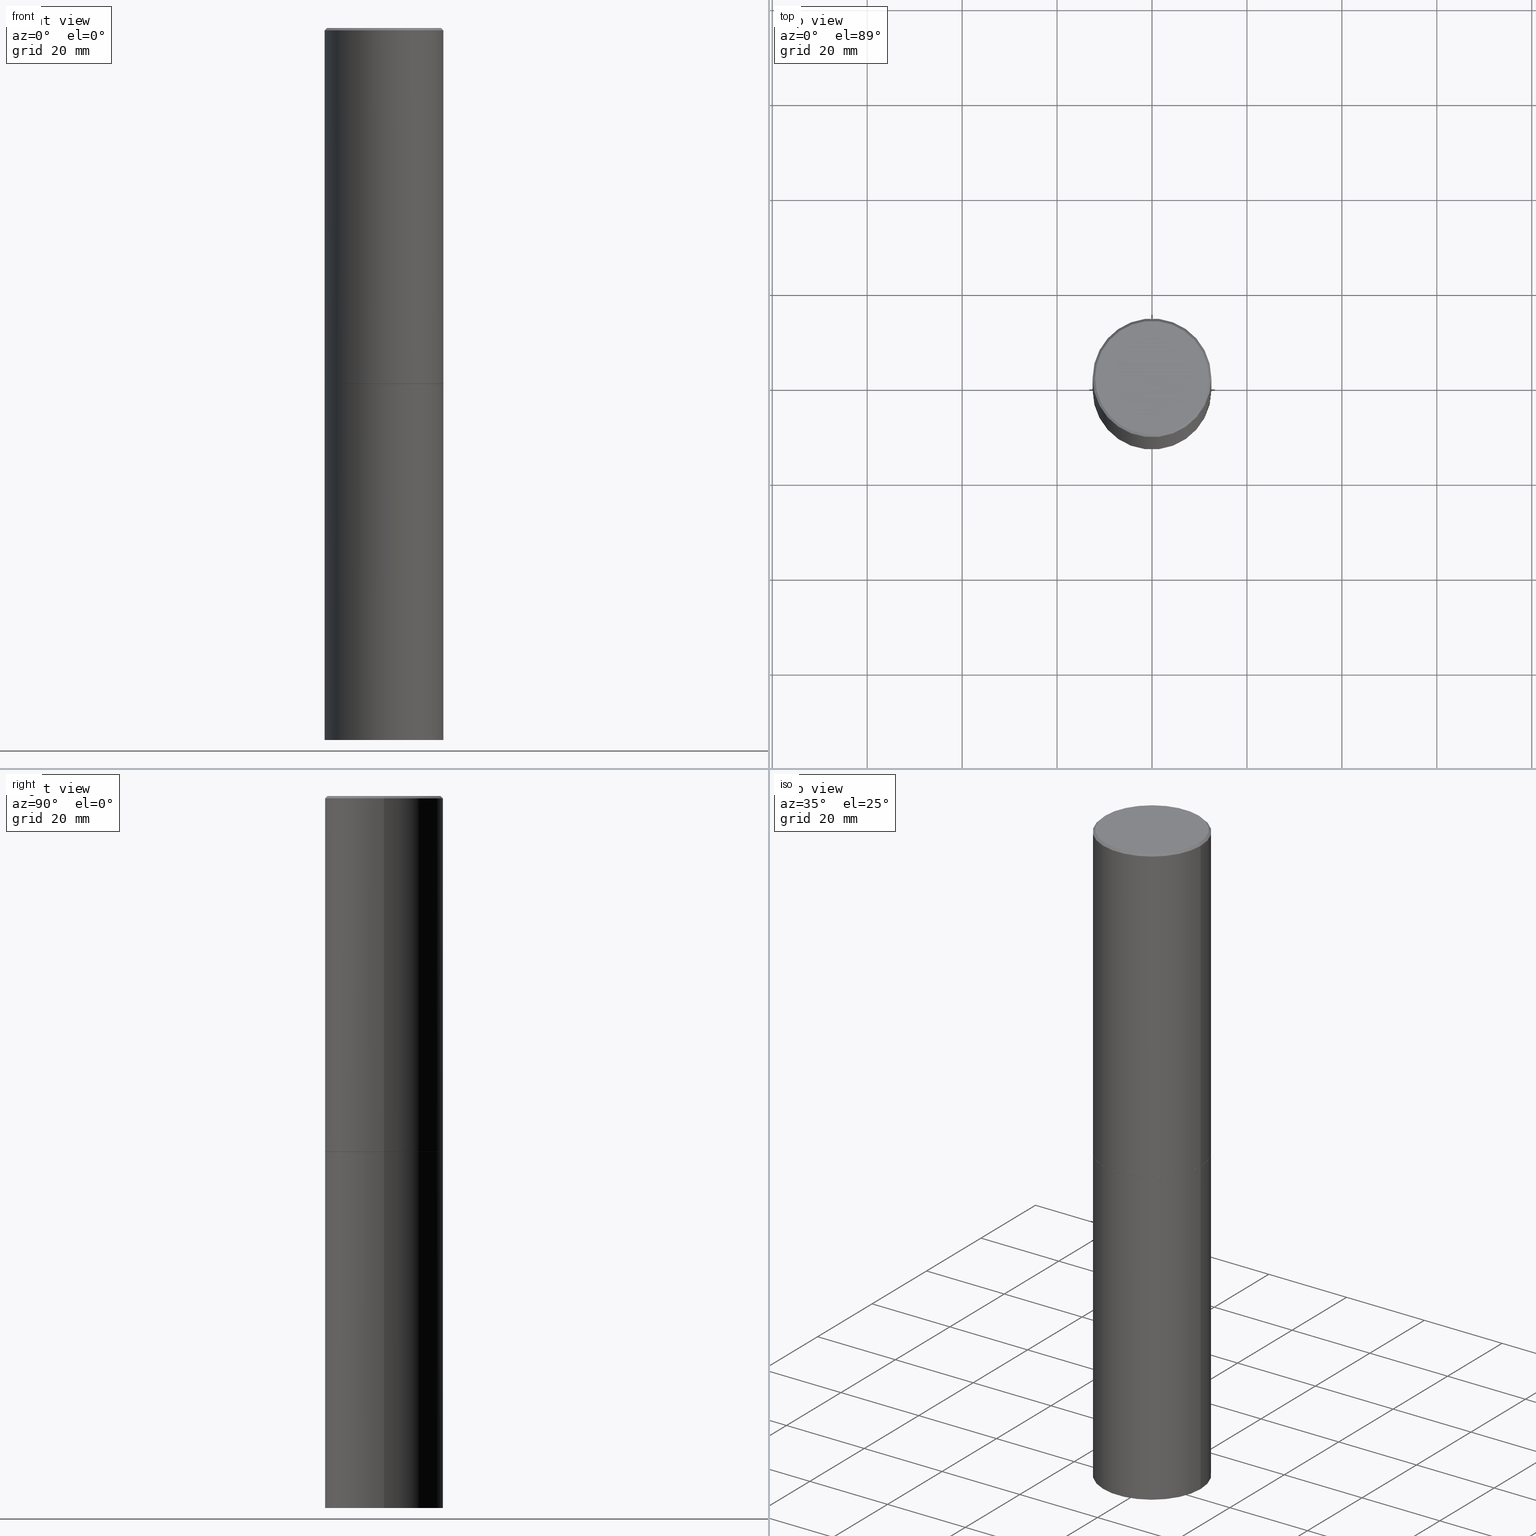
[diagram: canonical four-view strip — front | top / right | iso, engineering-drawing reading convention]
A machine part, canonical four-view strip (front | top / right | iso — engineering-drawing reading convention). The complete STEP part file that produces these views, byte-faithful:
ISO-10303-21;
HEADER;
FILE_DESCRIPTION (( 'STEP AP203' ),
    '1' );
FILE_NAME ('70563.STEP',
    '2024-02-29T04:14:40',
    ( '' ),
    ( '' ),
    'SwSTEP 2.0',
    'SolidWorks 2023',
    '' );
FILE_SCHEMA (( 'CONFIG_CONTROL_DESIGN' ));
ENDSEC;

DATA;
#1 = ADVANCED_FACE ( 'NONE', ( #340 ), #129, .T. ) ;
#2 = ORIENTED_EDGE ( 'NONE', *, *, #165, .F. ) ;
#3 = ORIENTED_EDGE ( 'NONE', *, *, #34, .F. ) ;
#4 = PERSON_AND_ORGANIZATION ( #355, #241 ) ;
#5 = DATE_AND_TIME ( #148, #132 ) ;
#6 = COORDINATED_UNIVERSAL_TIME_OFFSET ( 5, 0, .BEHIND. ) ;
#7 = VERTEX_POINT ( 'NONE', #158 ) ;
#8 = EDGE_CURVE ( 'NONE', #299, #152, #245, .T. ) ;
#9 = ORIENTED_EDGE ( 'NONE', *, *, #13, .F. ) ;
#10 = MECHANICAL_CONTEXT ( 'NONE', #189, 'mechanical' ) ;
#11 = CARTESIAN_POINT ( 'NONE',  ( -0.4911499999999999755, -6.819466302516424705E-15, -2.952700000000000546 ) ) ;
#12 = CC_DESIGN_SECURITY_CLASSIFICATION ( #176, ( #203 ) ) ;
#13 = EDGE_CURVE ( 'NONE', #331, #261, #123, .T. ) ;
#14 = ORIENTED_EDGE ( 'NONE', *, *, #227, .F. ) ;
#15 = EDGE_LOOP ( 'NONE', ( #122, #84, #82, #32 ) ) ;
#16 =( LENGTH_UNIT ( ) NAMED_UNIT ( * ) SI_UNIT ( $, .METRE. ) );
#17 = DIRECTION ( 'NONE',  ( 1.000000000000000000, -6.982962677686264344E-15, 0.000000000000000000 ) ) ;
#18 = VECTOR ( 'NONE', #181, 39.37007874015748143 ) ;
#19 = CONICAL_SURFACE ( 'NONE', #270, 0.4921499999999996988, 0.7853981633974469467 ) ;
#20 = FACE_OUTER_BOUND ( 'NONE', #339, .T. ) ;
#21 = CC_DESIGN_DATE_AND_TIME_ASSIGNMENT ( #329, #213, ( #176 ) ) ;
#22 = CYLINDRICAL_SURFACE ( 'NONE', #119, 0.4921499999999998098 ) ;
#23 = DIRECTION ( 'NONE',  ( 2.438088387897960049E-29, -3.491481338843145188E-15, -1.000000000000000000 ) ) ;
#24 = COORDINATED_UNIVERSAL_TIME_OFFSET ( 5, 0, .BEHIND. ) ;
#25 = EDGE_CURVE ( 'NONE', #61, #273, #279, .T. ) ;
#26 = CARTESIAN_POINT ( 'NONE',  ( 3.436665081823440533E-15, 0.4921499999999793262, -5.905500000000001748 ) ) ;
#27 = DIRECTION ( 'NONE',  ( 0.000000000000000000, 0.000000000000000000, 1.000000000000000000 ) ) ;
#28 = APPROVAL_ROLE ( '' ) ;
#29 = ORIENTED_EDGE ( 'NONE', *, *, #39, .T. ) ;
#30 = DIRECTION ( 'NONE',  ( -2.445468806185136877E-29, 3.491481338843145188E-15, 1.000000000000000000 ) ) ;
#31 = APPROVAL_PERSON_ORGANIZATION ( #4, #147, #223 ) ;
#32 = ORIENTED_EDGE ( 'NONE', *, *, #25, .F. ) ;
#33 = ORIENTED_EDGE ( 'NONE', *, *, #240, .T. ) ;
#34 = EDGE_CURVE ( 'NONE', #7, #273, #174, .T. ) ;
#35 = AXIS2_PLACEMENT_3D ( 'NONE', #225, #199, #95 ) ;
#36 = CARTESIAN_POINT ( 'NONE',  ( -0.4921499999999996988, 3.366835455046430506E-15, -0.02000000000000010797 ) ) ;
#37 = CALENDAR_DATE ( 2024, 28, 2 ) ;
#38 = DIRECTION ( 'NONE',  ( 1.000000000000000000, -6.982962677686265922E-15, 4.876006802227162976E-29 ) ) ;
#39 = EDGE_CURVE ( 'NONE', #61, #276, #105, .T. ) ;
#40 = VECTOR ( 'NONE', #205, 39.37007874015748143 ) ;
#41 = AXIS2_PLACEMENT_3D ( 'NONE', #74, #49, #210 ) ;
#42 = APPROVAL_STATUS ( 'not_yet_approved' ) ;
#43 = DIRECTION ( 'NONE',  ( 0.7071067811865465735, -7.319954787623252890E-15, -0.7071067811865484609 ) ) ;
#44 = ORIENTED_EDGE ( 'NONE', *, *, #39, .F. ) ;
#45 = EDGE_CURVE ( 'NONE', #59, #299, #256, .T. ) ;
#46 = CARTESIAN_POINT ( 'NONE',  ( 7.220735744022853640E-29, -1.030929694920215659E-14, -2.952700000000000546 ) ) ;
#47 = AXIS2_PLACEMENT_3D ( 'NONE', #66, #255, #345 ) ;
#48 = AXIS2_PLACEMENT_3D ( 'NONE', #54, #291, #17 ) ;
#49 = DIRECTION ( 'NONE',  ( -2.445468806185136597E-29, 3.491481338843145583E-15, 1.000000000000000000 ) ) ;
#50 = DIRECTION ( 'NONE',  ( -2.445468806185136597E-29, 3.491481338843145583E-15, 1.000000000000000000 ) ) ;
#51 = DIRECTION ( 'NONE',  ( -2.445468806185136597E-29, 3.491481338843145583E-15, 1.000000000000000000 ) ) ;
#52 = APPROVAL_PERSON_ORGANIZATION ( #116, #79, #242 ) ;
#53 = LINE ( 'NONE', #312, #92 ) ;
#54 = CARTESIAN_POINT ( 'NONE',  ( 7.220735744022853640E-29, -1.030929694920215659E-14, -2.952700000000000546 ) ) ;
#55 = AXIS2_PLACEMENT_3D ( 'NONE', #239, #357, #104 ) ;
#56 = ORIENTED_EDGE ( 'NONE', *, *, #200, .T. ) ;
#57 = CARTESIAN_POINT ( 'NONE',  ( -0.4921499999999996988, 3.366835455046430506E-15, -0.02000000000000010797 ) ) ;
#58 = EDGE_LOOP ( 'NONE', ( #302, #177, #85, #335 ) ) ;
#59 = VERTEX_POINT ( 'NONE', #125 ) ;
#60 = FACE_OUTER_BOUND ( 'NONE', #193, .T. ) ;
#61 = VERTEX_POINT ( 'NONE', #229 ) ;
#62 = CC_DESIGN_APPROVAL ( #147, ( #176 ) ) ;
#63 = DIRECTION ( 'NONE',  ( -1.000000000000000000, 6.982962677686265922E-15, -4.876176775795935793E-29 ) ) ;
#64 = PERSON_AND_ORGANIZATION_ROLE ( 'creator' ) ;
#65 = DIRECTION ( 'NONE',  ( -2.445468806185136597E-29, 3.491481338843145583E-15, 1.000000000000000000 ) ) ;
#66 = CARTESIAN_POINT ( 'NONE',  ( 0.000000000000000000, 0.000000000000000000, 0.000000000000000000 ) ) ;
#67 = DIRECTION ( 'NONE',  ( 1.000000000000000000, -6.982962677686265922E-15, 0.000000000000000000 ) ) ;
#68 = LOCAL_TIME ( 23, 14, 40.00000000000000000, #24 ) ;
#69 = PLANE ( 'NONE',  #247 ) ;
#70 = CALENDAR_DATE ( 2024, 28, 2 ) ;
#71 = ADVANCED_FACE ( 'NONE', ( #127 ), #348, .T. ) ;
#72 = FACE_OUTER_BOUND ( 'NONE', #58, .T. ) ;
#73 = DIRECTION ( 'NONE',  ( -1.000000000000000000, 6.982962677686265922E-15, 0.000000000000000000 ) ) ;
#74 = CARTESIAN_POINT ( 'NONE',  ( 7.220735744022853640E-29, -1.030929694920215659E-14, -2.952700000000000546 ) ) ;
#75 = CARTESIAN_POINT ( 'NONE',  ( 1.444171603492632270E-28, -2.061894304653819197E-14, -5.905499999999999972 ) ) ;
#76 = AXIS2_PLACEMENT_3D ( 'NONE', #107, #51, #143 ) ;
#77 = DIRECTION ( 'NONE',  ( 1.000000000000000000, -6.982962677686265922E-15, 0.000000000000000000 ) ) ;
#78 = CARTESIAN_POINT ( 'NONE',  ( 7.220735744022853640E-29, -1.030929694920215659E-14, -2.952700000000000546 ) ) ;
#79 = APPROVAL ( #267, 'UNSPECIFIED' ) ;
#80 = PLANE ( 'NONE',  #297 ) ;
#81 = PERSON_AND_ORGANIZATION_ROLE ( 'design_owner' ) ;
#82 = ORIENTED_EDGE ( 'NONE', *, *, #34, .T. ) ;
#83 = ADVANCED_FACE ( 'NONE', ( #349 ), #97, .T. ) ;
#84 = ORIENTED_EDGE ( 'NONE', *, *, #361, .T. ) ;
#85 = ORIENTED_EDGE ( 'NONE', *, *, #325, .F. ) ;
#86 = LOCAL_TIME ( 23, 14, 40.00000000000000000, #6 ) ;
#87 = DIRECTION ( 'NONE',  ( 1.000000000000000000, -6.982962677686264344E-15, 0.000000000000000000 ) ) ;
#88 = PERSON_AND_ORGANIZATION ( #355, #241 ) ;
#89 = ORIENTED_EDGE ( 'NONE', *, *, #325, .T. ) ;
#90 = EDGE_LOOP ( 'NONE', ( #56, #196, #9, #218 ) ) ;
#91 = PERSON_AND_ORGANIZATION ( #355, #241 ) ;
#92 = VECTOR ( 'NONE', #319, 39.37007874015748143 ) ;
#93 = DIRECTION ( 'NONE',  ( 1.000000000000000000, -6.982962677686265922E-15, 0.000000000000000000 ) ) ;
#94 = EDGE_CURVE ( 'NONE', #299, #273, #211, .T. ) ;
#95 = DIRECTION ( 'NONE',  ( 1.000000000000000000, -6.982962677686265922E-15, 0.000000000000000000 ) ) ;
#96 = ORIENTED_EDGE ( 'NONE', *, *, #103, .F. ) ;
#97 = CYLINDRICAL_SURFACE ( 'NONE', #323, 0.4921499999999998098 ) ;
#98 = CARTESIAN_POINT ( 'NONE',  ( -2.087702828670439639E-46, 2.980686340760894400E-32, 8.537024980200822558E-18 ) ) ;
#99 = AXIS2_PLACEMENT_3D ( 'NONE', #269, #187, #235 ) ;
#100 = UNCERTAINTY_MEASURE_WITH_UNIT (LENGTH_MEASURE( 1.000000000000000082E-05 ), #274, 'distance_accuracy_value', 'NONE');
#101 = DIRECTION ( 'NONE',  ( 1.000000000000000000, -6.982962677686264344E-15, 0.000000000000000000 ) ) ;
#102 = FACE_OUTER_BOUND ( 'NONE', #150, .T. ) ;
#103 = EDGE_CURVE ( 'NONE', #336, #59, #358, .T. ) ;
#104 = DIRECTION ( 'NONE',  ( 1.000000000000000000, -6.982962677686265922E-15, 4.876006802227162976E-29 ) ) ;
#105 = CIRCLE ( 'NONE', #364, 0.4721499999999996255 ) ;
#106 =( GEOMETRIC_REPRESENTATION_CONTEXT ( 3 ) GLOBAL_UNCERTAINTY_ASSIGNED_CONTEXT ( ( #100 ) ) GLOBAL_UNIT_ASSIGNED_CONTEXT ( ( #274, #109, #142 ) ) REPRESENTATION_CONTEXT ( 'NONE', 'WORKASPACE' ) );
#107 = CARTESIAN_POINT ( 'NONE',  ( 4.890937612370299433E-31, -6.982962677686328587E-17, -0.02000000000000010797 ) ) ;
#108 = DIRECTION ( 'NONE',  ( -1.000000000000000000, 6.982962677686265922E-15, -4.876176775795935793E-29 ) ) ;
#109 =( NAMED_UNIT ( * ) PLANE_ANGLE_UNIT ( ) SI_UNIT ( $, .RADIAN. ) );
#110 = PERSON_AND_ORGANIZATION_ROLE ( 'classification_officer' ) ;
#111 = AXIS2_PLACEMENT_3D ( 'NONE', #231, #224, #233 ) ;
#112 = CLOSED_SHELL ( 'NONE', ( #334, #83, #156, #248, #175, #292, #209, #257 ) ) ;
#113 = CALENDAR_DATE ( 2024, 28, 2 ) ;
#114 = PRODUCT_DEFINITION_SHAPE ( 'NONE', 'NONE',  #206 ) ;
#115 = ORIENTED_EDGE ( 'NONE', *, *, #13, .T. ) ;
#116 = PERSON_AND_ORGANIZATION ( #355, #241 ) ;
#117 = ORIENTED_EDGE ( 'NONE', *, *, #151, .F. ) ;
#118 = ORIENTED_EDGE ( 'NONE', *, *, #282, .T. ) ;
#119 = AXIS2_PLACEMENT_3D ( 'NONE', #294, #166, #288 ) ;
#120 = EDGE_LOOP ( 'NONE', ( #144, #259, #333, #173 ) ) ;
#121 = VERTEX_POINT ( 'NONE', #265 ) ;
#122 = ORIENTED_EDGE ( 'NONE', *, *, #240, .F. ) ;
#123 = CIRCLE ( 'NONE', #111, 0.4921499999999999764 ) ;
#124 = VECTOR ( 'NONE', #43, 39.37007874015748143 ) ;
#125 = CARTESIAN_POINT ( 'NONE',  ( -0.4911499999999999755, -6.814167848168202303E-15, -2.952700000000000546 ) ) ;
#126 = APPROVAL_DATE_TIME ( #198, #220 ) ;
#127 = FACE_OUTER_BOUND ( 'NONE', #90, .T. ) ;
#128 = CC_DESIGN_PERSON_AND_ORGANIZATION_ASSIGNMENT ( #280, #347, ( #203 ) ) ;
#129 = CYLINDRICAL_SURFACE ( 'NONE', #47, 0.4921499999999999764 ) ;
#130 = DIRECTION ( 'NONE',  ( -2.438088387897960049E-29, 3.491481338843145188E-15, 1.000000000000000000 ) ) ;
#131 = VECTOR ( 'NONE', #197, 39.37007874015748143 ) ;
#132 = LOCAL_TIME ( 23, 14, 40.00000000000000000, #219 ) ;
#133 = DIRECTION ( 'NONE',  ( 1.000000000000000000, -6.982962677686265922E-15, 0.000000000000000000 ) ) ;
#134 = LINE ( 'NONE', #253, #365 ) ;
#135 = CARTESIAN_POINT ( 'NONE',  ( 0.4921499999999998098, -3.436665081823294593E-15, 2.399810400207968762E-29 ) ) ;
#136 = AXIS2_PLACEMENT_3D ( 'NONE', #202, #311, #93 ) ;
#137 = AXIS2_PLACEMENT_3D ( 'NONE', #75, #184, #133 ) ;
#138 = DIRECTION ( 'NONE',  ( 2.438088387897960049E-29, -3.491481338843145188E-15, -1.000000000000000000 ) ) ;
#139 = CARTESIAN_POINT ( 'NONE',  ( -0.4921499999999999764, -1.196718392382684217E-14, -5.905499999999999972 ) ) ;
#140 = DIRECTION ( 'NONE',  ( 1.000000000000000000, 0.000000000000000000, 0.000000000000000000 ) ) ;
#141 = PERSON_AND_ORGANIZATION ( #355, #241 ) ;
#142 =( NAMED_UNIT ( * ) SI_UNIT ( $, .STERADIAN. ) SOLID_ANGLE_UNIT ( ) );
#143 = DIRECTION ( 'NONE',  ( 1.000000000000000000, -6.982962677686265922E-15, 0.000000000000000000 ) ) ;
#144 = ORIENTED_EDGE ( 'NONE', *, *, #356, .F. ) ;
#145 = CC_DESIGN_APPROVAL ( #220, ( #206 ) ) ;
#146 = ORIENTED_EDGE ( 'NONE', *, *, #94, .T. ) ;
#147 = APPROVAL ( #42, 'UNSPECIFIED' ) ;
#148 = CALENDAR_DATE ( 2024, 28, 2 ) ;
#149 = AXIS2_PLACEMENT_3D ( 'NONE', #182, #341, #63 ) ;
#150 = EDGE_LOOP ( 'NONE', ( #171, #157, #192, #277 ) ) ;
#151 = EDGE_CURVE ( 'NONE', #152, #7, #296, .T. ) ;
#152 = VERTEX_POINT ( 'NONE', #167 ) ;
#153 = VECTOR ( 'NONE', #352, 39.37007874015748143 ) ;
#154 = CIRCLE ( 'NONE', #258, 0.4921499999999999764 ) ;
#155 = EDGE_LOOP ( 'NONE', ( #246, #222, #308, #260 ) ) ;
#156 = ADVANCED_FACE ( 'NONE', ( #268 ), #19, .T. ) ;
#157 = ORIENTED_EDGE ( 'NONE', *, *, #8, .T. ) ;
#158 = CARTESIAN_POINT ( 'NONE',  ( 0.4921499999999996988, -3.446223716380120377E-15, -0.02000000000000010797 ) ) ;
#159 = COORDINATED_UNIVERSAL_TIME_OFFSET ( 5, 0, .BEHIND. ) ;
#160 = CARTESIAN_POINT ( 'NONE',  ( 0.4921499999999999764, -3.436665081823295777E-15, 2.399810400207969603E-29 ) ) ;
#161 = AXIS2_PLACEMENT_3D ( 'NONE', #350, #65, #67 ) ;
#162 = DIRECTION ( 'NONE',  ( 1.000000000000000000, -6.982962677686265922E-15, 4.876176775795935793E-29 ) ) ;
#163 = CIRCLE ( 'NONE', #99, 0.4921499999999999764 ) ;
#164 = PRODUCT ( '70563', '70563', '', ( #10 ) ) ;
#165 = EDGE_CURVE ( 'NONE', #59, #336, #285, .T. ) ;
#166 = DIRECTION ( 'NONE',  ( -2.445468806185136597E-29, 3.491481338843145583E-15, 1.000000000000000000 ) ) ;
#167 = CARTESIAN_POINT ( 'NONE',  ( 0.4921499999999999764, -1.374247054968660936E-14, -2.951700000000000212 ) ) ;
#168 = DATE_TIME_ROLE ( 'creation_date' ) ;
#169 = PRODUCT_RELATED_PRODUCT_CATEGORY ( 'detail', '', ( #164 ) ) ;
#170 = AXIS2_PLACEMENT_3D ( 'NONE', #201, #283, #204 ) ;
#171 = ORIENTED_EDGE ( 'NONE', *, *, #94, .F. ) ;
#172 = ORIENTED_EDGE ( 'NONE', *, *, #25, .T. ) ;
#173 = ORIENTED_EDGE ( 'NONE', *, *, #275, .F. ) ;
#174 = CIRCLE ( 'NONE', #161, 0.4921499999999996988 ) ;
#175 = ADVANCED_FACE ( 'NONE', ( #102 ), #22, .T. ) ;
#176 = SECURITY_CLASSIFICATION ( '', '', #286 ) ;
#177 = ORIENTED_EDGE ( 'NONE', *, *, #45, .T. ) ;
#178 = CARTESIAN_POINT ( 'NONE',  ( -0.4921499999999999764, -1.690881473276754954E-15, -2.951700000000000212 ) ) ;
#179 = CARTESIAN_POINT ( 'NONE',  ( 4.890937612370299433E-31, -6.982962677686328587E-17, -0.02000000000000010797 ) ) ;
#180 = ORIENTED_EDGE ( 'NONE', *, *, #200, .F. ) ;
#181 = DIRECTION ( 'NONE',  ( -0.7071067811864267805, 7.493145998869918709E-15, 0.7071067811866682540 ) ) ;
#182 = CARTESIAN_POINT ( 'NONE',  ( 3.297005828269567997E-15, 0.4721499999999996255, -1.644234401644689488E-15 ) ) ;
#183 = DIRECTION ( 'NONE',  ( -2.445468806185136597E-29, 3.491481338843145583E-15, 1.000000000000000000 ) ) ;
#184 = DIRECTION ( 'NONE',  ( -2.445468806185136597E-29, 3.491481338843145583E-15, 1.000000000000000000 ) ) ;
#185 = LOCAL_TIME ( 23, 14, 40.00000000000000000, #212 ) ;
#186 = CARTESIAN_POINT ( 'NONE',  ( 0.4721499999999996255, -3.342703923013973396E-15, 8.537024980224040028E-18 ) ) ;
#187 = DIRECTION ( 'NONE',  ( -2.445468806185136597E-29, 3.491481338843145583E-15, 1.000000000000000000 ) ) ;
#188 = SHAPE_DEFINITION_REPRESENTATION ( #114, #338 ) ;
#189 = APPLICATION_CONTEXT ( 'configuration controlled 3d designs of mechanical parts and assemblies' ) ;
#190 = CC_DESIGN_PERSON_AND_ORGANIZATION_ASSIGNMENT ( #307, #64, ( #203 ) ) ;
#191 = CONICAL_SURFACE ( 'NONE', #337, 0.4921499999999996988, 0.7853981633974469467 ) ;
#192 = ORIENTED_EDGE ( 'NONE', *, *, #151, .T. ) ;
#193 = EDGE_LOOP ( 'NONE', ( #29, #33 ) ) ;
#194 = AXIS2_PLACEMENT_3D ( 'NONE', #78, #264, #101 ) ;
#195 = APPLICATION_CONTEXT ( 'configuration controlled 3d designs of mechanical parts and assemblies' ) ;
#196 = ORIENTED_EDGE ( 'NONE', *, *, #356, .T. ) ;
#197 = DIRECTION ( 'NONE',  ( -0.7071067811865465735, 2.468850131082246805E-15, -0.7071067811865484609 ) ) ;
#198 = DATE_AND_TIME ( #37, #86 ) ;
#199 = DIRECTION ( 'NONE',  ( -2.445468806185136597E-29, 3.491481338843145583E-15, 1.000000000000000000 ) ) ;
#200 = EDGE_CURVE ( 'NONE', #121, #216, #163, .T. ) ;
#201 = CARTESIAN_POINT ( 'NONE',  ( 0.000000000000000000, 0.000000000000000000, 0.000000000000000000 ) ) ;
#202 = CARTESIAN_POINT ( 'NONE',  ( 7.218290275216666916E-29, -1.030580546786331359E-14, -2.951700000000000212 ) ) ;
#203 = PRODUCT_DEFINITION_FORMATION_WITH_SPECIFIED_SOURCE ( 'ANY', '', #164, .NOT_KNOWN. ) ;
#204 = DIRECTION ( 'NONE',  ( 1.000000000000000000, -6.982962677686265922E-15, 4.876176775795935793E-29 ) ) ;
#205 = DIRECTION ( 'NONE',  ( -2.445468806185136877E-29, 3.491481338843145188E-15, 1.000000000000000000 ) ) ;
#206 = PRODUCT_DEFINITION ( 'UNKNOWN', '', #203, #317 ) ;
#207 = FACE_OUTER_BOUND ( 'NONE', #313, .T. ) ;
#208 = DATE_AND_TIME ( #70, #330 ) ;
#209 = ADVANCED_FACE ( 'NONE', ( #327 ), #80, .F. ) ;
#210 = DIRECTION ( 'NONE',  ( 1.000000000000000000, -6.982962677686264344E-15, 0.000000000000000000 ) ) ;
#211 = LINE ( 'NONE', #360, #153 ) ;
#212 = COORDINATED_UNIVERSAL_TIME_OFFSET ( 5, 0, .BEHIND. ) ;
#213 = DATE_TIME_ROLE ( 'classification_date' ) ;
#214 = ORIENTED_EDGE ( 'NONE', *, *, #275, .T. ) ;
#215 = ADVANCED_FACE ( 'NONE', ( #20 ), #293, .T. ) ;
#216 = VERTEX_POINT ( 'NONE', #139 ) ;
#217 = MANIFOLD_SOLID_BREP ( 'Body-Move/Copy2[1]', #226 ) ;
#218 = ORIENTED_EDGE ( 'NONE', *, *, #250, .F. ) ;
#219 = COORDINATED_UNIVERSAL_TIME_OFFSET ( 5, 0, .BEHIND. ) ;
#220 = APPROVAL ( #271, 'UNSPECIFIED' ) ;
#221 = APPROVAL_DATE_TIME ( #5, #79 ) ;
#222 = ORIENTED_EDGE ( 'NONE', *, *, #165, .T. ) ;
#223 = APPROVAL_ROLE ( '' ) ;
#224 = DIRECTION ( 'NONE',  ( -2.445468806185136597E-29, 3.491481338843145583E-15, 1.000000000000000000 ) ) ;
#225 = CARTESIAN_POINT ( 'NONE',  ( 7.218290275216666916E-29, -1.030580546786331359E-14, -2.951700000000000212 ) ) ;
#226 = CLOSED_SHELL ( 'NONE', ( #71, #215, #328, #1 ) ) ;
#227 = EDGE_CURVE ( 'NONE', #216, #121, #252, .T. ) ;
#228 = DIMENSIONAL_EXPONENTS ( 1.000000000000000000, 0.000000000000000000, 0.000000000000000000, 0.000000000000000000, 0.000000000000000000, 0.000000000000000000, 0.000000000000000000 ) ;
#229 = CARTESIAN_POINT ( 'NONE',  ( -0.4721499999999996255, 3.331920641657999252E-15, 8.537024980177643606E-18 ) ) ;
#230 = FACE_OUTER_BOUND ( 'NONE', #251, .T. ) ;
#231 = CARTESIAN_POINT ( 'NONE',  ( 7.220735744022852519E-29, -1.030929694920215502E-14, -2.952700000000000102 ) ) ;
#232 = DIRECTION ( 'NONE',  ( 2.445468806185136597E-29, -3.491481338843145583E-15, -1.000000000000000000 ) ) ;
#233 = DIRECTION ( 'NONE',  ( 1.000000000000000000, -6.982962677686265922E-15, 0.000000000000000000 ) ) ;
#234 = CIRCLE ( 'NONE', #76, 0.4921499999999996988 ) ;
#235 = DIRECTION ( 'NONE',  ( 1.000000000000000000, -6.982962677686265922E-15, 0.000000000000000000 ) ) ;
#236 = CC_DESIGN_PERSON_AND_ORGANIZATION_ASSIGNMENT ( #91, #310, ( #206 ) ) ;
#237 = FACE_OUTER_BOUND ( 'NONE', #155, .T. ) ;
#238 = CARTESIAN_POINT ( 'NONE',  ( 0.4911499999999999755, -1.373897906834776478E-14, -2.952700000000000546 ) ) ;
#239 = CARTESIAN_POINT ( 'NONE',  ( -2.087702828670439639E-46, 2.980686340760894400E-32, 8.537024980200822558E-18 ) ) ;
#240 = EDGE_CURVE ( 'NONE', #276, #61, #315, .T. ) ;
#241 = ORGANIZATION ( 'UNSPECIFIED', 'UNSPECIFIED', '' ) ;
#242 = APPROVAL_ROLE ( '' ) ;
#243 = DIRECTION ( 'NONE',  ( 2.445468806185136597E-29, -3.491481338843145583E-15, -1.000000000000000000 ) ) ;
#244 = APPLICATION_PROTOCOL_DEFINITION ( 'international standard', 'config_control_design', 1994, #195 ) ;
#245 = CIRCLE ( 'NONE', #136, 0.4921499999999999764 ) ;
#246 = ORIENTED_EDGE ( 'NONE', *, *, #45, .F. ) ;
#247 = AXIS2_PLACEMENT_3D ( 'NONE', #344, #138, #108 ) ;
#248 = ADVANCED_FACE ( 'NONE', ( #207 ), #191, .T. ) ;
#249 = CALENDAR_DATE ( 2024, 28, 2 ) ;
#250 = EDGE_CURVE ( 'NONE', #121, #331, #322, .T. ) ;
#251 = EDGE_LOOP ( 'NONE', ( #115, #214 ) ) ;
#252 = CIRCLE ( 'NONE', #137, 0.4921499999999999764 ) ;
#253 = CARTESIAN_POINT ( 'NONE',  ( 0.4911499999999999755, -1.373897906834776478E-14, -2.952700000000000546 ) ) ;
#254 = EDGE_LOOP ( 'NONE', ( #96, #2 ) ) ;
#255 = DIRECTION ( 'NONE',  ( -2.445468806185136597E-29, 3.491481338843145583E-15, 1.000000000000000000 ) ) ;
#256 = LINE ( 'NONE', #11, #18 ) ;
#257 = ADVANCED_FACE ( 'NONE', ( #60 ), #278, .F. ) ;
#258 = AXIS2_PLACEMENT_3D ( 'NONE', #326, #301, #77 ) ;
#259 = ORIENTED_EDGE ( 'NONE', *, *, #227, .T. ) ;
#260 = ORIENTED_EDGE ( 'NONE', *, *, #8, .F. ) ;
#261 = VERTEX_POINT ( 'NONE', #306 ) ;
#262 = APPROVAL_DATE_TIME ( #208, #147 ) ;
#263 = AXIS2_PLACEMENT_3D ( 'NONE', #354, #50, #87 ) ;
#264 = DIRECTION ( 'NONE',  ( -2.445468806185136597E-29, 3.491481338843145583E-15, 1.000000000000000000 ) ) ;
#265 = CARTESIAN_POINT ( 'NONE',  ( 0.4921499999999999764, -2.405560812836148932E-14, -5.905499999999999972 ) ) ;
#266 = EDGE_CURVE ( 'NONE', #336, #152, #134, .T. ) ;
#267 = APPROVAL_STATUS ( 'not_yet_approved' ) ;
#268 = FACE_OUTER_BOUND ( 'NONE', #15, .T. ) ;
#269 = CARTESIAN_POINT ( 'NONE',  ( 1.444171603492632270E-28, -2.061894304653819197E-14, -5.905499999999999972 ) ) ;
#270 = AXIS2_PLACEMENT_3D ( 'NONE', #353, #243, #73 ) ;
#271 = APPROVAL_STATUS ( 'not_yet_approved' ) ;
#272 = CONICAL_SURFACE ( 'NONE', #263, 0.4911499999999999755, 0.7853981633972775267 ) ;
#273 = VERTEX_POINT ( 'NONE', #57 ) ;
#274 =( CONVERSION_BASED_UNIT ( 'INCH', #362 ) LENGTH_UNIT ( ) NAMED_UNIT ( #228 ) );
#275 = EDGE_CURVE ( 'NONE', #261, #331, #154, .T. ) ;
#276 = VERTEX_POINT ( 'NONE', #186 ) ;
#277 = ORIENTED_EDGE ( 'NONE', *, *, #282, .F. ) ;
#278 = PLANE ( 'NONE',  #149 ) ;
#279 = LINE ( 'NONE', #36, #131 ) ;
#280 = PERSON_AND_ORGANIZATION ( #355, #241 ) ;
#281 = DIRECTION ( 'NONE',  ( -2.445468806185136597E-29, 3.491481338843145583E-15, 1.000000000000000000 ) ) ;
#282 = EDGE_CURVE ( 'NONE', #273, #7, #234, .T. ) ;
#283 = DIRECTION ( 'NONE',  ( -2.445468806185136597E-29, 3.491481338843145583E-15, 1.000000000000000000 ) ) ;
#284 = CARTESIAN_POINT ( 'NONE',  ( 0.4921499999999996988, -3.446223716380120377E-15, -0.02000000000000010797 ) ) ;
#285 = CIRCLE ( 'NONE', #48, 0.4911499999999999755 ) ;
#286 = SECURITY_CLASSIFICATION_LEVEL ( 'unclassified' ) ;
#287 = ORIENTED_EDGE ( 'NONE', *, *, #361, .F. ) ;
#288 = DIRECTION ( 'NONE',  ( 1.000000000000000000, -6.982962677686265922E-15, 4.876176775795935793E-29 ) ) ;
#289 = LINE ( 'NONE', #284, #124 ) ;
#290 = AXIS2_PLACEMENT_3D ( 'NONE', #304, #27, #140 ) ;
#291 = DIRECTION ( 'NONE',  ( -2.445468806185136597E-29, 3.491481338843145583E-15, 1.000000000000000000 ) ) ;
#292 = ADVANCED_FACE ( 'NONE', ( #237 ), #272, .T. ) ;
#293 = PLANE ( 'NONE',  #359 ) ;
#294 = CARTESIAN_POINT ( 'NONE',  ( 0.000000000000000000, 0.000000000000000000, 0.000000000000000000 ) ) ;
#295 = APPLICATION_PROTOCOL_DEFINITION ( 'international standard', 'config_control_design', 1994, #189 ) ;
#296 = LINE ( 'NONE', #135, #40 ) ;
#297 = AXIS2_PLACEMENT_3D ( 'NONE', #46, #130, #162 ) ;
#298 = CC_DESIGN_PERSON_AND_ORGANIZATION_ASSIGNMENT ( #141, #81, ( #164 ) ) ;
#299 = VERTEX_POINT ( 'NONE', #178 ) ;
#300 = DIRECTION ( 'NONE',  ( -1.000000000000000000, 6.982962677686265922E-15, 0.000000000000000000 ) ) ;
#301 = DIRECTION ( 'NONE',  ( -2.445468806185136597E-29, 3.491481338843145583E-15, 1.000000000000000000 ) ) ;
#302 = ORIENTED_EDGE ( 'NONE', *, *, #103, .T. ) ;
#303 = CONICAL_SURFACE ( 'NONE', #41, 0.4911499999999999755, 0.7853981633972775267 ) ;
#304 = CARTESIAN_POINT ( 'NONE',  ( 0.000000000000000000, 0.000000000000000000, 0.000000000000000000 ) ) ;
#305 = DIRECTION ( 'NONE',  ( 0.7071067811864267805, -2.468850131080992517E-15, 0.7071067811866682540 ) ) ;
#306 = CARTESIAN_POINT ( 'NONE',  ( -0.4921499999999999764, -1.196718392382684217E-14, -2.952700000000000102 ) ) ;
#307 = PERSON_AND_ORGANIZATION ( #355, #241 ) ;
#308 = ORIENTED_EDGE ( 'NONE', *, *, #266, .T. ) ;
#309 = EDGE_LOOP ( 'NONE', ( #89, #146, #3, #117 ) ) ;
#310 = PERSON_AND_ORGANIZATION_ROLE ( 'creator' ) ;
#311 = DIRECTION ( 'NONE',  ( -2.445468806185136597E-29, 3.491481338843145583E-15, 1.000000000000000000 ) ) ;
#312 = CARTESIAN_POINT ( 'NONE',  ( -0.4921499999999999764, 3.496936074043332897E-15, -2.420853904668951509E-29 ) ) ;
#313 = EDGE_LOOP ( 'NONE', ( #287, #44, #172, #118 ) ) ;
#314 = CC_DESIGN_DATE_AND_TIME_ASSIGNMENT ( #332, #168, ( #206 ) ) ;
#315 = CIRCLE ( 'NONE', #55, 0.4721499999999996255 ) ;
#316 = CARTESIAN_POINT ( 'NONE',  ( 0.000000000000000000, 0.000000000000000000, 0.000000000000000000 ) ) ;
#317 = DESIGN_CONTEXT ( 'detailed design', #195, 'design' ) ;
#318 = DIRECTION ( 'NONE',  ( 1.000000000000000000, -6.982962677686265922E-15, 4.876176775795935793E-29 ) ) ;
#319 = DIRECTION ( 'NONE',  ( -2.445468806185136877E-29, 3.491481338843145188E-15, 1.000000000000000000 ) ) ;
#320 = CARTESIAN_POINT ( 'NONE',  ( 0.4921499999999999764, -1.374596203102545079E-14, -2.952700000000000102 ) ) ;
#321 = DIRECTION ( 'NONE',  ( -1.000000000000000000, 6.982962677686265922E-15, -4.876176775795935793E-29 ) ) ;
#322 = LINE ( 'NONE', #160, #324 ) ;
#323 = AXIS2_PLACEMENT_3D ( 'NONE', #316, #183, #318 ) ;
#324 = VECTOR ( 'NONE', #30, 39.37007874015748143 ) ;
#325 = EDGE_CURVE ( 'NONE', #152, #299, #351, .T. ) ;
#326 = CARTESIAN_POINT ( 'NONE',  ( 7.220735744022852519E-29, -1.030929694920215502E-14, -2.952700000000000102 ) ) ;
#327 = FACE_OUTER_BOUND ( 'NONE', #254, .T. ) ;
#328 = ADVANCED_FACE ( 'NONE', ( #230 ), #69, .F. ) ;
#329 = DATE_AND_TIME ( #113, #185 ) ;
#330 = LOCAL_TIME ( 23, 14, 40.00000000000000000, #159 ) ;
#331 = VERTEX_POINT ( 'NONE', #320 ) ;
#332 = DATE_AND_TIME ( #249, #68 ) ;
#333 = ORIENTED_EDGE ( 'NONE', *, *, #250, .T. ) ;
#334 = ADVANCED_FACE ( 'NONE', ( #72 ), #303, .T. ) ;
#335 = ORIENTED_EDGE ( 'NONE', *, *, #266, .F. ) ;
#336 = VERTEX_POINT ( 'NONE', #238 ) ;
#337 = AXIS2_PLACEMENT_3D ( 'NONE', #179, #232, #300 ) ;
#338 = ADVANCED_BREP_SHAPE_REPRESENTATION ( '70563', ( #217, #343, #290 ), #106 ) ;
#339 = EDGE_LOOP ( 'NONE', ( #180, #14 ) ) ;
#340 = FACE_OUTER_BOUND ( 'NONE', #120, .T. ) ;
#341 = DIRECTION ( 'NONE',  ( 2.438088387897960049E-29, -3.491481338843145188E-15, -1.000000000000000000 ) ) ;
#342 = CC_DESIGN_PERSON_AND_ORGANIZATION_ASSIGNMENT ( #88, #110, ( #176 ) ) ;
#343 = MANIFOLD_SOLID_BREP ( 'Body-Move/Copy2[2]', #112 ) ;
#344 = CARTESIAN_POINT ( 'NONE',  ( 3.436665081823367957E-15, 0.4921499999999896513, -2.952700000000001435 ) ) ;
#345 = DIRECTION ( 'NONE',  ( 1.000000000000000000, -6.982962677686265922E-15, 4.876176775795935793E-29 ) ) ;
#346 = CC_DESIGN_APPROVAL ( #79, ( #203 ) ) ;
#347 = PERSON_AND_ORGANIZATION_ROLE ( 'design_supplier' ) ;
#348 = CYLINDRICAL_SURFACE ( 'NONE', #170, 0.4921499999999999764 ) ;
#349 = FACE_OUTER_BOUND ( 'NONE', #309, .T. ) ;
#350 = CARTESIAN_POINT ( 'NONE',  ( 4.890937612370299433E-31, -6.982962677686328587E-17, -0.02000000000000010797 ) ) ;
#351 = CIRCLE ( 'NONE', #35, 0.4921499999999999764 ) ;
#352 = DIRECTION ( 'NONE',  ( -2.445468806185136877E-29, 3.491481338843145188E-15, 1.000000000000000000 ) ) ;
#353 = CARTESIAN_POINT ( 'NONE',  ( 4.890937612370299433E-31, -6.982962677686328587E-17, -0.02000000000000010797 ) ) ;
#354 = CARTESIAN_POINT ( 'NONE',  ( 7.220735744022853640E-29, -1.030929694920215659E-14, -2.952700000000000546 ) ) ;
#355 = PERSON ( 'UNSPECIFIED', 'UNSPECIFIED', 'UNSPECIFIED', ('UNSPECIFIED'), ('UNSPECIFIED'), ('UNSPECIFIED') ) ;
#356 = EDGE_CURVE ( 'NONE', #216, #261, #53, .T. ) ;
#357 = DIRECTION ( 'NONE',  ( -2.445468806185136597E-29, 3.491481338843145583E-15, 1.000000000000000000 ) ) ;
#358 = CIRCLE ( 'NONE', #194, 0.4911499999999999755 ) ;
#359 = AXIS2_PLACEMENT_3D ( 'NONE', #26, #23, #321 ) ;
#360 = CARTESIAN_POINT ( 'NONE',  ( -0.4921499999999998098, 3.496936074043331714E-15, -2.420853904668950949E-29 ) ) ;
#361 = EDGE_CURVE ( 'NONE', #276, #7, #289, .T. ) ;
#362 = LENGTH_MEASURE_WITH_UNIT ( LENGTH_MEASURE( 0.02539999999999999897 ), #16 );
#363 = PERSON_AND_ORGANIZATION ( #355, #241 ) ;
#364 = AXIS2_PLACEMENT_3D ( 'NONE', #98, #281, #38 ) ;
#365 = VECTOR ( 'NONE', #305, 39.37007874015748143 ) ;
#366 = APPROVAL_PERSON_ORGANIZATION ( #363, #220, #28 ) ;
ENDSEC;
END-ISO-10303-21;
